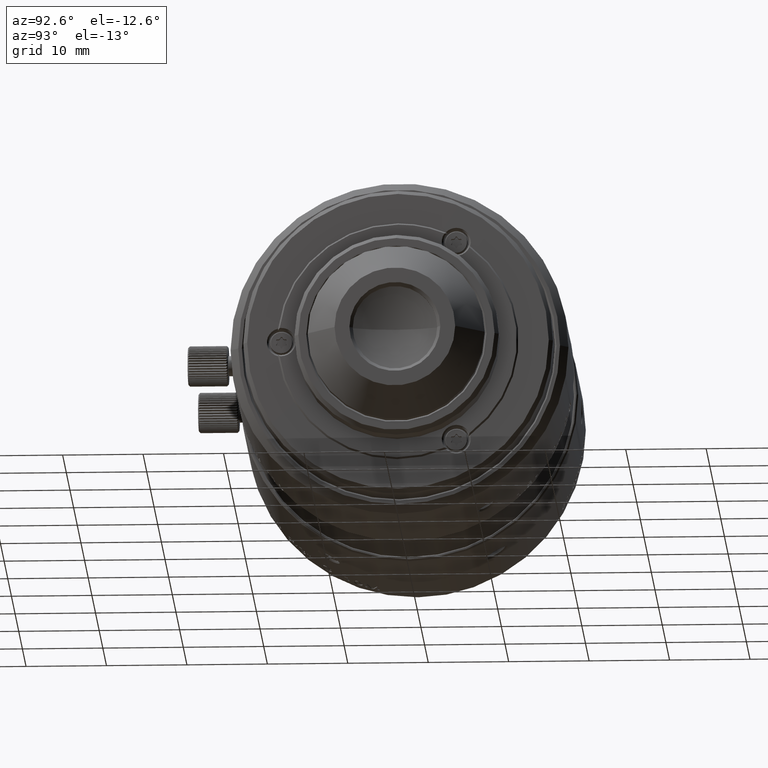
[diagram: clean part render]
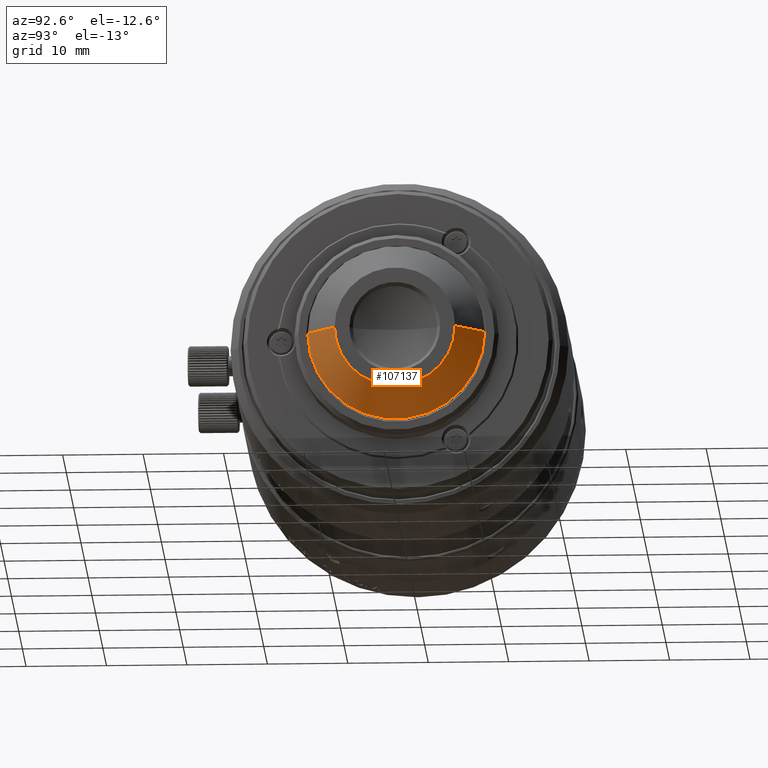
[diagram: same view with one face highlighted and labeled with its STEP entity id]
A machine part, auxiliary view. The second image highlights one B-rep face of the part: STEP entity #107137.
In plain terms, the highlighted conical surface has half-angle 45 deg.
Its self-contained STEP definition (entity closure, byte-faithful):
#6215 = CARTESIAN_POINT ( 'NONE',  ( 1.342551000000000050, -7.500000000000000000, 0.000000000000000000 ) ) ;
#6683 = CARTESIAN_POINT ( 'NONE',  ( -2.157449000000000172, -11.00000000000000000, 0.000000000000000000 ) ) ;
#9232 = AXIS2_PLACEMENT_3D ( 'NONE', #48013, #89399, #29939 ) ;
#10936 = CARTESIAN_POINT ( 'NONE',  ( -2.157449000000000172, 0.000000000000000000, 0.000000000000000000 ) ) ;
#17830 = CIRCLE ( 'NONE', #9232, 7.500000000000000000 ) ;
#19296 = DIRECTION ( 'NONE',  ( 0.7071067811865474617, 0.7071067811865474617, 0.000000000000000000 ) ) ;
#19952 = AXIS2_PLACEMENT_3D ( 'NONE', #103183, #20388, #82456 ) ;
#20013 = LINE ( 'NONE', #80100, #25243 ) ;
#20388 = DIRECTION ( 'NONE',  ( -1.000000000000000000, 0.000000000000000000, 0.000000000000000000 ) ) ;
#22364 = EDGE_CURVE ( 'NONE', #72096, #42914, #66862, .T. ) ;
#24270 = AXIS2_PLACEMENT_3D ( 'NONE', #10936, #51623, #59678 ) ;
#25243 = VECTOR ( 'NONE', #99511, 1000.000000000000114 ) ;
#28447 = ORIENTED_EDGE ( 'NONE', *, *, #120868, .T. ) ;
#29939 = DIRECTION ( 'NONE',  ( 0.000000000000000000, 1.000000000000000000, 0.000000000000000000 ) ) ;
#38094 = VECTOR ( 'NONE', #19296, 1000.000000000000114 ) ;
#40641 = LINE ( 'NONE', #120842, #38094 ) ;
#42914 = VERTEX_POINT ( 'NONE', #6683 ) ;
#43768 = ORIENTED_EDGE ( 'NONE', *, *, #78119, .T. ) ;
#45982 = VERTEX_POINT ( 'NONE', #122665 ) ;
#46980 = EDGE_LOOP ( 'NONE', ( #43768, #75298, #101359, #28447 ) ) ;
#48013 = CARTESIAN_POINT ( 'NONE',  ( 1.342551000000000050, 0.000000000000000000, 0.000000000000000000 ) ) ;
#50960 = CARTESIAN_POINT ( 'NONE',  ( -2.157449000000000172, 11.00000000000000000, 0.000000000000000000 ) ) ;
#51623 = DIRECTION ( 'NONE',  ( -1.000000000000000000, 0.000000000000000000, 0.000000000000000000 ) ) ;
#59678 = DIRECTION ( 'NONE',  ( 0.000000000000000000, 1.000000000000000000, 0.000000000000000000 ) ) ;
#60433 = CONICAL_SURFACE ( 'NONE', #19952, 9.250000000000000000, 0.7853981633972997312 ) ;
#66862 = CIRCLE ( 'NONE', #24270, 11.00000000000000000 ) ;
#72096 = VERTEX_POINT ( 'NONE', #50960 ) ;
#75298 = ORIENTED_EDGE ( 'NONE', *, *, #118305, .F. ) ;
#78119 = EDGE_CURVE ( 'NONE', #45982, #94301, #17830, .T. ) ;
#80100 = CARTESIAN_POINT ( 'NONE',  ( -2.157449000000000172, 11.00000000000000000, 0.000000000000000000 ) ) ;
#82456 = DIRECTION ( 'NONE',  ( 0.000000000000000000, 1.000000000000000000, 0.000000000000000000 ) ) ;
#89399 = DIRECTION ( 'NONE',  ( -1.000000000000000000, 0.000000000000000000, 0.000000000000000000 ) ) ;
#94301 = VERTEX_POINT ( 'NONE', #6215 ) ;
#99511 = DIRECTION ( 'NONE',  ( 0.7071067811865474617, -0.7071067811865474617, 0.000000000000000000 ) ) ;
#101359 = ORIENTED_EDGE ( 'NONE', *, *, #22364, .F. ) ;
#103183 = CARTESIAN_POINT ( 'NONE',  ( -0.4074490000000000056, 0.000000000000000000, 0.000000000000000000 ) ) ;
#107137 = ADVANCED_FACE ( 'NONE', ( #113875 ), #60433, .T. ) ;
#113875 = FACE_OUTER_BOUND ( 'NONE', #46980, .T. ) ;
#118305 = EDGE_CURVE ( 'NONE', #42914, #94301, #40641, .T. ) ;
#120842 = CARTESIAN_POINT ( 'NONE',  ( -2.157449000000000172, -11.00000000000000000, 0.000000000000000000 ) ) ;
#120868 = EDGE_CURVE ( 'NONE', #72096, #45982, #20013, .T. ) ;
#122665 = CARTESIAN_POINT ( 'NONE',  ( 1.342551000000000050, 7.500000000000000000, 0.000000000000000000 ) ) ;